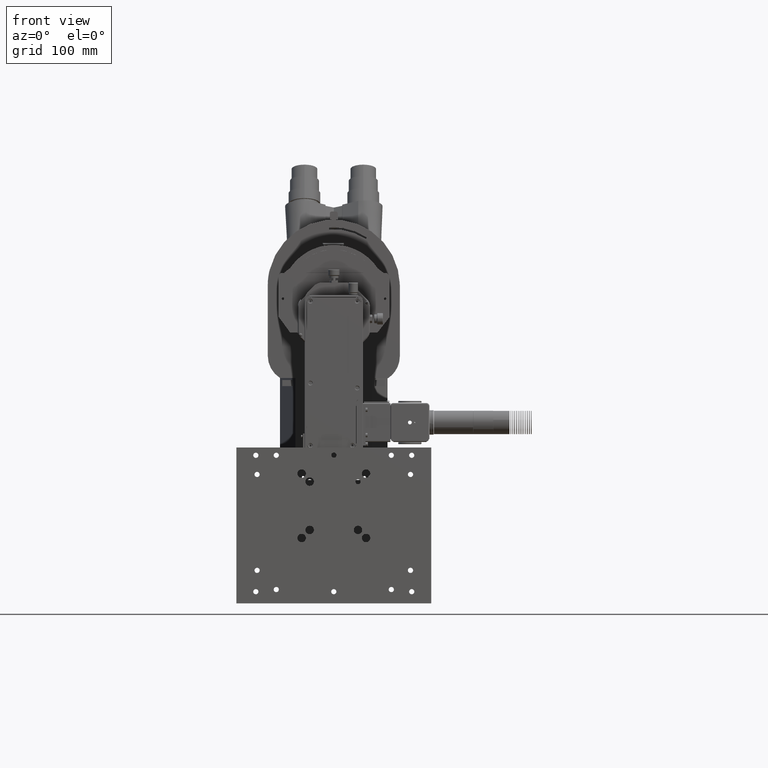
[diagram: clean part render]
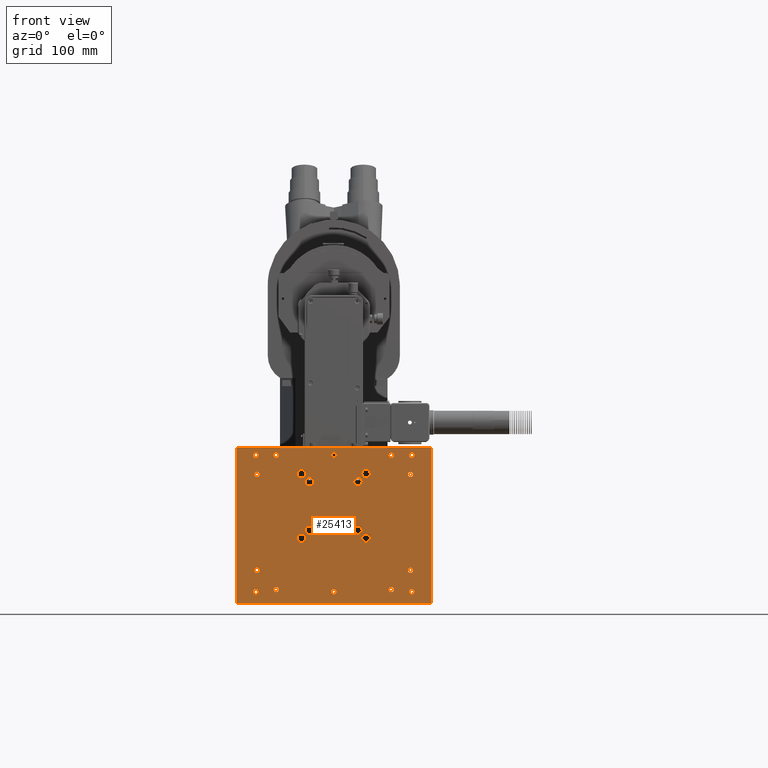
[diagram: same view with one face highlighted and labeled with its STEP entity id]
A machine part, front view. The second image highlights one B-rep face of the part: STEP entity #25413.
In plain terms, the highlighted planar face has unit normal (0, -1, 0).
Its self-contained STEP definition (entity closure, byte-faithful):
#322 = DIRECTION ( 'NONE',  ( 0.0000000000000000000, 0.0000000000000000000, 1.000000000000000000 ) ) ;
#351 = VERTEX_POINT ( 'NONE', #124702 ) ;
#393 = AXIS2_PLACEMENT_3D ( 'NONE', #75958, #5577, #87717 ) ;
#517 = DIRECTION ( 'NONE',  ( -0.0000000000000000000, -1.000000000000000000, -0.0000000000000000000 ) ) ;
#668 = FACE_BOUND ( 'NONE', #17417, .T. ) ;
#756 = ORIENTED_EDGE ( 'NONE', *, *, #141740, .T. ) ;
#826 = DIRECTION ( 'NONE',  ( -0.0000000000000000000, -1.000000000000000000, -0.0000000000000000000 ) ) ;
#1178 = DIRECTION ( 'NONE',  ( 0.0000000000000000000, 0.0000000000000000000, 1.000000000000000000 ) ) ;
#1414 = EDGE_CURVE ( 'NONE', #109411, #146704, #26668, .T. ) ;
#1657 = VERTEX_POINT ( 'NONE', #77274 ) ;
#2815 = DIRECTION ( 'NONE',  ( -0.0000000000000000000, -1.000000000000000000, -0.0000000000000000000 ) ) ;
#2987 = CARTESIAN_POINT ( 'NONE',  ( -100.5459852987327200, -399.1462781206983000, 302.1606022212441800 ) ) ;
#3270 = CARTESIAN_POINT ( 'NONE',  ( 126.4540147012673000, -399.1462781206983000, 138.6224023232441900 ) ) ;
#3274 = CARTESIAN_POINT ( 'NONE',  ( 128.0540147012672800, -399.1462781206983000, 292.0006022212442100 ) ) ;
#3458 = AXIS2_PLACEMENT_3D ( 'NONE', #14338, #96528, #26104 ) ;
#3528 = VERTEX_POINT ( 'NONE', #105061 ) ;
#3657 = EDGE_CURVE ( 'NONE', #120094, #57173, #18606, .T. ) ;
#4375 = EDGE_CURVE ( 'NONE', #151669, #13624, #56819, .T. ) ;
#4600 = CARTESIAN_POINT ( 'NONE',  ( -73.54598529873271700, -399.1462781206983000, 138.6224023232441900 ) ) ;
#4930 = DIRECTION ( 'NONE',  ( 0.0000000000000000000, 0.0000000000000000000, 1.000000000000000000 ) ) ;
#5414 = LINE ( 'NONE', #22625, #67844 ) ;
#5577 = DIRECTION ( 'NONE',  ( -0.0000000000000000000, -1.000000000000000000, -0.0000000000000000000 ) ) ;
#5737 = CARTESIAN_POINT ( 'NONE',  ( 26.45401470126729000, -399.1462781206983000, 292.0006022212442100 ) ) ;
#5921 = AXIS2_PLACEMENT_3D ( 'NONE', #79499, #9078, #91287 ) ;
#6106 = DIRECTION ( 'NONE',  ( -0.0000000000000000000, 1.000000000000000000, -0.0000000000000000000 ) ) ;
#6260 = CARTESIAN_POINT ( 'NONE',  ( 57.95001470126939600, -399.1462781206983000, 262.9566022212446800 ) ) ;
#6780 = CARTESIAN_POINT ( 'NONE',  ( -48.54598529873270300, -399.1462781206983000, 292.0006022212442100 ) ) ;
#7404 = ORIENTED_EDGE ( 'NONE', *, *, #145349, .F. ) ;
#7628 = DIRECTION ( 'NONE',  ( -0.0000000000000000000, -1.000000000000000000, -0.0000000000000000000 ) ) ;
#8201 = VERTEX_POINT ( 'NONE', #119262 ) ;
#8243 = DIRECTION ( 'NONE',  ( 0.0000000000000000000, 0.0000000000000000000, -1.000000000000000000 ) ) ;
#8752 = VECTOR ( 'NONE', #48364, 1000.000000000000000 ) ;
#8981 = AXIS2_PLACEMENT_3D ( 'NONE', #76488, #6106, #88281 ) ;
#9078 = DIRECTION ( 'NONE',  ( -0.0000000000000000000, -1.000000000000000000, -0.0000000000000000000 ) ) ;
#9120 = VERTEX_POINT ( 'NONE', #35962 ) ;
#9248 = CARTESIAN_POINT ( 'NONE',  ( 26.45401470126729000, -399.1462781206983000, 295.3788022212442000 ) ) ;
#9401 = DIRECTION ( 'NONE',  ( 0.0000000000000000000, 0.0000000000000000000, 1.000000000000000000 ) ) ;
#9575 = ORIENTED_EDGE ( 'NONE', *, *, #148997, .T. ) ;
#9847 = EDGE_CURVE ( 'NONE', #17553, #128916, #149635, .T. ) ;
#11129 = AXIS2_PLACEMENT_3D ( 'NONE', #78020, #7628, #89839 ) ;
#11387 = CARTESIAN_POINT ( 'NONE',  ( 153.4540147012672800, -399.1462781206983000, 302.1606022212441800 ) ) ;
#12430 = AXIS2_PLACEMENT_3D ( 'NONE', #108325, #37753, #120207 ) ;
#12500 = ORIENTED_EDGE ( 'NONE', *, *, #18422, .F. ) ;
#12503 = VERTEX_POINT ( 'NONE', #71260 ) ;
#13187 = ORIENTED_EDGE ( 'NONE', *, *, #126448, .F. ) ;
#13316 = CIRCLE ( 'NONE', #145901, 3.378199999999997900 ) ;
#13491 = VERTEX_POINT ( 'NONE', #101199 ) ;
#13624 = VERTEX_POINT ( 'NONE', #27217 ) ;
#13822 = AXIS2_PLACEMENT_3D ( 'NONE', #142048, #71417, #1178 ) ;
#14146 = DIRECTION ( 'NONE',  ( -0.0000000000000000000, 1.000000000000000000, -0.0000000000000000000 ) ) ;
#14200 = ORIENTED_EDGE ( 'NONE', *, *, #3657, .T. ) ;
#14315 = DIRECTION ( 'NONE',  ( -0.0000000000000000000, 1.000000000000000000, -0.0000000000000000000 ) ) ;
#14338 = CARTESIAN_POINT ( 'NONE',  ( 57.95001470126939600, -399.1462781206983000, 194.4646022212447700 ) ) ;
#14832 = VERTEX_POINT ( 'NONE', #86598 ) ;
#14958 = LINE ( 'NONE', #2987, #105164 ) ;
#15413 = CARTESIAN_POINT ( 'NONE',  ( 126.4540147012673000, -399.1462781206983000, 267.0006022212441500 ) ) ;
#16310 = VERTEX_POINT ( 'NONE', #6260 ) ;
#16438 = EDGE_CURVE ( 'NONE', #3528, #97197, #104066, .T. ) ;
#16835 = EDGE_LOOP ( 'NONE', ( #93724, #13187 ) ) ;
#17032 = FACE_BOUND ( 'NONE', #33519, .T. ) ;
#17417 = EDGE_LOOP ( 'NONE', ( #146280, #19807 ) ) ;
#17456 = DIRECTION ( 'NONE',  ( 0.0000000000000000000, 0.0000000000000000000, 1.000000000000000000 ) ) ;
#17553 = VERTEX_POINT ( 'NONE', #81390 ) ;
#17598 = CARTESIAN_POINT ( 'NONE',  ( -73.54598529873271700, -399.1462781206983000, 270.3788022212441400 ) ) ;
#17708 = CIRCLE ( 'NONE', #94916, 5.500000000000005300 ) ;
#17968 = ORIENTED_EDGE ( 'NONE', *, *, #147350, .T. ) ;
#18068 = ORIENTED_EDGE ( 'NONE', *, *, #26207, .F. ) ;
#18108 = CARTESIAN_POINT ( 'NONE',  ( 68.45291470126937800, -399.1462781206983000, 183.9617022212447900 ) ) ;
#18422 = EDGE_CURVE ( 'NONE', #14832, #13491, #5414, .T. ) ;
#18508 = DIRECTION ( 'NONE',  ( 0.0000000000000000000, 0.0000000000000000000, 1.000000000000000000 ) ) ;
#18530 = EDGE_CURVE ( 'NONE', #93617, #12503, #126917, .T. ) ;
#18606 = CIRCLE ( 'NONE', #65833, 3.378199999999997900 ) ;
#19389 = DIRECTION ( 'NONE',  ( -0.0000000000000000000, -1.000000000000000000, -0.0000000000000000000 ) ) ;
#19805 = CARTESIAN_POINT ( 'NONE',  ( 26.45401470126729000, -399.1462781206983000, 117.5788022212441700 ) ) ;
#19807 = ORIENTED_EDGE ( 'NONE', *, *, #16438, .T. ) ;
#20007 = CARTESIAN_POINT ( 'NONE',  ( -15.54488529872733000, -399.1462781206983000, 267.9595022212479900 ) ) ;
#20688 = ORIENTED_EDGE ( 'NONE', *, *, #9847, .F. ) ;
#20716 = FACE_BOUND ( 'NONE', #148176, .T. ) ;
#20774 = EDGE_CURVE ( 'NONE', #95065, #57367, #98026, .T. ) ;
#22280 = ORIENTED_EDGE ( 'NONE', *, *, #71861, .T. ) ;
#22625 = CARTESIAN_POINT ( 'NONE',  ( -100.5459852987327200, -399.1462781206983000, 98.96060222124420100 ) ) ;
#22731 = ORIENTED_EDGE ( 'NONE', *, *, #101878, .T. ) ;
#22740 = CIRCLE ( 'NONE', #58352, 5.500000000000005300 ) ;
#23021 = CARTESIAN_POINT ( 'NONE',  ( 128.0540147012672800, -399.1462781206983000, 110.8224022212442000 ) ) ;
#23814 = CIRCLE ( 'NONE', #127663, 3.378199999999997900 ) ;
#24347 = FACE_BOUND ( 'NONE', #82354, .T. ) ;
#24717 = CARTESIAN_POINT ( 'NONE',  ( 126.4540147012673000, -399.1462781206983000, 145.3788023232441700 ) ) ;
#25219 = DIRECTION ( 'NONE',  ( 0.0000000000000000000, 0.0000000000000000000, 1.000000000000000000 ) ) ;
#25413 = ADVANCED_FACE ( 'NONE', ( #31791, #35412, #668, #122081, #90671, #59371, #28100, #149749, #118338, #86927, #55682, #24347, #145997, #114639, #83248, #51981, #20716, #142276, #110953, #79604, #48274, #17032, #138591 ), #96564, .T. ) ;
#25929 = VERTEX_POINT ( 'NONE', #120782 ) ;
#26104 = DIRECTION ( 'NONE',  ( 0.0000000000000000000, 0.0000000000000000000, -1.000000000000000000 ) ) ;
#26207 = EDGE_CURVE ( 'NONE', #70835, #32268, #132544, .T. ) ;
#26303 = ORIENTED_EDGE ( 'NONE', *, *, #18530, .F. ) ;
#26337 = ORIENTED_EDGE ( 'NONE', *, *, #1414, .T. ) ;
#26668 = CIRCLE ( 'NONE', #92453, 3.378199999999997900 ) ;
#26672 = DIRECTION ( 'NONE',  ( 0.0000000000000000000, -1.000000000000000000, 0.0000000000000000000 ) ) ;
#26925 = ORIENTED_EDGE ( 'NONE', *, *, #75647, .F. ) ;
#26987 = CARTESIAN_POINT ( 'NONE',  ( -75.14598529873269700, -399.1462781206983000, 114.2006022212442000 ) ) ;
#27217 = CARTESIAN_POINT ( 'NONE',  ( -75.14598529873269700, -399.1462781206983000, 110.8224022212442000 ) ) ;
#27232 = DIRECTION ( 'NONE',  ( 0.0000000000000000000, 0.0000000000000000000, 1.000000000000000000 ) ) ;
#28100 = FACE_BOUND ( 'NONE', #127516, .T. ) ;
#29495 = CARTESIAN_POINT ( 'NONE',  ( 126.4540147012673000, -399.1462781206983000, 270.3788022212441400 ) ) ;
#29753 = VERTEX_POINT ( 'NONE', #126216 ) ;
#29927 = DIRECTION ( 'NONE',  ( 0.0000000000000000000, 0.0000000000000000000, -1.000000000000000000 ) ) ;
#31632 = CIRCLE ( 'NONE', #60205, 3.378199999999997900 ) ;
#31791 = FACE_BOUND ( 'NONE', #83372, .T. ) ;
#32268 = VERTEX_POINT ( 'NONE', #119928 ) ;
#32433 = VERTEX_POINT ( 'NONE', #87872 ) ;
#32659 = CARTESIAN_POINT ( 'NONE',  ( -5.041985298728151900, -399.1462781206983000, 257.4566022212471800 ) ) ;
#32951 = AXIS2_PLACEMENT_3D ( 'NONE', #62251, #144656, #74043 ) ;
#32960 = CARTESIAN_POINT ( 'NONE',  ( 26.45401470126729000, -399.1462781206983000, 288.6224022212442200 ) ) ;
#33377 = EDGE_LOOP ( 'NONE', ( #125577, #7404 ) ) ;
#33519 = EDGE_LOOP ( 'NONE', ( #44997, #134516 ) ) ;
#34106 = CARTESIAN_POINT ( 'NONE',  ( 126.4540147012673000, -399.1462781206983000, 142.0006023232441800 ) ) ;
#34324 = CARTESIAN_POINT ( 'NONE',  ( 68.45291470126937800, -399.1462781206983000, 183.9617022212447900 ) ) ;
#34331 = ORIENTED_EDGE ( 'NONE', *, *, #40324, .T. ) ;
#34783 = DIRECTION ( 'NONE',  ( 0.0000000000000000000, 0.0000000000000000000, 1.000000000000000000 ) ) ;
#34914 = CIRCLE ( 'NONE', #36866, 3.378199999999997900 ) ;
#35412 = FACE_BOUND ( 'NONE', #79916, .T. ) ;
#35962 = CARTESIAN_POINT ( 'NONE',  ( -5.041985298728151900, -399.1462781206983000, 188.9646022212422700 ) ) ;
#36117 = CARTESIAN_POINT ( 'NONE',  ( -15.54488529872733000, -399.1462781206983000, 178.4617022212414700 ) ) ;
#36538 = CIRCLE ( 'NONE', #32951, 3.378199999999997900 ) ;
#36866 = AXIS2_PLACEMENT_3D ( 'NONE', #137734, #67146, #149650 ) ;
#36942 = VERTEX_POINT ( 'NONE', #134491 ) ;
#37714 = EDGE_CURVE ( 'NONE', #68869, #1657, #36538, .T. ) ;
#37753 = DIRECTION ( 'NONE',  ( -0.0000000000000000000, -1.000000000000000000, -0.0000000000000000000 ) ) ;
#38034 = CARTESIAN_POINT ( 'NONE',  ( -75.14598529873269700, -399.1462781206983000, 117.5788022212442000 ) ) ;
#38770 = DIRECTION ( 'NONE',  ( 0.0000000000000000000, 0.0000000000000000000, 1.000000000000000000 ) ) ;
#39422 = EDGE_CURVE ( 'NONE', #16310, #84991, #22740, .T. ) ;
#39644 = DIRECTION ( 'NONE',  ( -0.0000000000000000000, 1.000000000000000000, -0.0000000000000000000 ) ) ;
#40137 = ORIENTED_EDGE ( 'NONE', *, *, #133438, .F. ) ;
#40324 = EDGE_CURVE ( 'NONE', #351, #106833, #102152, .T. ) ;
#41427 = CIRCLE ( 'NONE', #113439, 3.378199999999997900 ) ;
#41807 = CIRCLE ( 'NONE', #127027, 3.378199999999997900 ) ;
#42486 = EDGE_CURVE ( 'NONE', #84991, #16310, #52851, .T. ) ;
#42579 = CARTESIAN_POINT ( 'NONE',  ( 26.45401470126729000, -399.1462781206983000, 114.2006022212441700 ) ) ;
#42637 = AXIS2_PLACEMENT_3D ( 'NONE', #34324, #116731, #46163 ) ;
#43033 = CIRCLE ( 'NONE', #56867, 3.378199999999997900 ) ;
#44293 = DIRECTION ( 'NONE',  ( 0.0000000000000000000, 0.0000000000000000000, -1.000000000000000000 ) ) ;
#44404 = EDGE_CURVE ( 'NONE', #45562, #36942, #41807, .T. ) ;
#44460 = DIRECTION ( 'NONE',  ( 0.0000000000000000000, 0.0000000000000000000, -1.000000000000000000 ) ) ;
#44997 = ORIENTED_EDGE ( 'NONE', *, *, #62649, .F. ) ;
#45165 = DIRECTION ( 'NONE',  ( -0.0000000000000000000, 1.000000000000000000, -0.0000000000000000000 ) ) ;
#45294 = ORIENTED_EDGE ( 'NONE', *, *, #44404, .T. ) ;
#45562 = VERTEX_POINT ( 'NONE', #147287 ) ;
#45667 = DIRECTION ( 'NONE',  ( 0.0000000000000000000, 0.0000000000000000000, 1.000000000000000000 ) ) ;
#45937 = DIRECTION ( 'NONE',  ( 0.0000000000000000000, 0.0000000000000000000, 1.000000000000000000 ) ) ;
#46120 = AXIS2_PLACEMENT_3D ( 'NONE', #32659, #115006, #44460 ) ;
#46163 = DIRECTION ( 'NONE',  ( 0.0000000000000000000, 0.0000000000000000000, -1.000000000000000000 ) ) ;
#46533 = ORIENTED_EDGE ( 'NONE', *, *, #4375, .T. ) ;
#46787 = CARTESIAN_POINT ( 'NONE',  ( -73.54598529873271700, -399.1462781206983000, 145.3788023232441700 ) ) ;
#47088 = VERTEX_POINT ( 'NONE', #3270 ) ;
#47395 = EDGE_CURVE ( 'NONE', #57367, #95065, #105958, .T. ) ;
#48274 = FACE_BOUND ( 'NONE', #50780, .T. ) ;
#48289 = DIRECTION ( 'NONE',  ( -0.0000000000000000000, 1.000000000000000000, -0.0000000000000000000 ) ) ;
#48364 = DIRECTION ( 'NONE',  ( 1.000000000000000000, 0.0000000000000000000, 0.0000000000000000000 ) ) ;
#48534 = EDGE_CURVE ( 'NONE', #32268, #70835, #123799, .T. ) ;
#48933 = ORIENTED_EDGE ( 'NONE', *, *, #51956, .T. ) ;
#49107 = VERTEX_POINT ( 'NONE', #121422 ) ;
#50780 = EDGE_LOOP ( 'NONE', ( #146854, #57571 ) ) ;
#51579 = CARTESIAN_POINT ( 'NONE',  ( 68.45291470126937800, -399.1462781206983000, 273.4595022212446300 ) ) ;
#51716 = DIRECTION ( 'NONE',  ( -0.0000000000000000000, 1.000000000000000000, -0.0000000000000000000 ) ) ;
#51956 = EDGE_CURVE ( 'NONE', #47088, #65986, #96351, .T. ) ;
#51981 = FACE_BOUND ( 'NONE', #145126, .T. ) ;
#52057 = ORIENTED_EDGE ( 'NONE', *, *, #130166, .F. ) ;
#52851 = CIRCLE ( 'NONE', #99096, 5.500000000000005300 ) ;
#53226 = DIRECTION ( 'NONE',  ( -0.0000000000000000000, -1.000000000000000000, -0.0000000000000000000 ) ) ;
#53359 = CARTESIAN_POINT ( 'NONE',  ( -75.14598529873269700, -399.1462781206983000, 288.6224022212442200 ) ) ;
#53476 = AXIS2_PLACEMENT_3D ( 'NONE', #34106, #116497, #45937 ) ;
#53818 = AXIS2_PLACEMENT_3D ( 'NONE', #3274, #97191, #144171 ) ;
#54471 = DIRECTION ( 'NONE',  ( 0.0000000000000000000, 0.0000000000000000000, 1.000000000000000000 ) ) ;
#55682 = FACE_BOUND ( 'NONE', #142528, .T. ) ;
#56114 = CARTESIAN_POINT ( 'NONE',  ( 57.95001470126939600, -399.1462781206983000, 194.4646022212447700 ) ) ;
#56424 = EDGE_LOOP ( 'NONE', ( #26337, #123849 ) ) ;
#56699 = CIRCLE ( 'NONE', #104025, 3.378199999999997900 ) ;
#56819 = CIRCLE ( 'NONE', #61623, 3.378199999999997900 ) ;
#56867 = AXIS2_PLACEMENT_3D ( 'NONE', #145856, #75285, #4930 ) ;
#57173 = VERTEX_POINT ( 'NONE', #137619 ) ;
#57367 = VERTEX_POINT ( 'NONE', #70554 ) ;
#57517 = CARTESIAN_POINT ( 'NONE',  ( -73.54598529873271700, -399.1462781206983000, 142.0006023232441800 ) ) ;
#57571 = ORIENTED_EDGE ( 'NONE', *, *, #39422, .F. ) ;
#58352 = AXIS2_PLACEMENT_3D ( 'NONE', #70134, #152697, #82005 ) ;
#58595 = EDGE_LOOP ( 'NONE', ( #22731, #72949 ) ) ;
#58791 = EDGE_LOOP ( 'NONE', ( #92944, #45294 ) ) ;
#59371 = FACE_BOUND ( 'NONE', #79541, .T. ) ;
#60205 = AXIS2_PLACEMENT_3D ( 'NONE', #133923, #63385, #145839 ) ;
#60560 = CIRCLE ( 'NONE', #86711, 3.378199999999997900 ) ;
#60610 = CIRCLE ( 'NONE', #119850, 3.378199999999997900 ) ;
#60725 = CIRCLE ( 'NONE', #13822, 3.378199999999997900 ) ;
#61238 = EDGE_CURVE ( 'NONE', #125228, #152521, #124548, .T. ) ;
#61623 = AXIS2_PLACEMENT_3D ( 'NONE', #105341, #117174, #34783 ) ;
#62251 = CARTESIAN_POINT ( 'NONE',  ( -75.14598529873269700, -399.1462781206983000, 292.0006022212442100 ) ) ;
#62649 = EDGE_CURVE ( 'NONE', #152275, #147371, #17708, .T. ) ;
#62910 = AXIS2_PLACEMENT_3D ( 'NONE', #15413, #97643, #27232 ) ;
#63385 = DIRECTION ( 'NONE',  ( -0.0000000000000000000, 1.000000000000000000, -0.0000000000000000000 ) ) ;
#63412 = EDGE_CURVE ( 'NONE', #97680, #130536, #122504, .T. ) ;
#63889 = CARTESIAN_POINT ( 'NONE',  ( 128.0540147012672800, -399.1462781206983000, 117.5788022212442000 ) ) ;
#63975 = DIRECTION ( 'NONE',  ( -0.0000000000000000000, 1.000000000000000000, -0.0000000000000000000 ) ) ;
#65418 = EDGE_LOOP ( 'NONE', ( #20688, #111443 ) ) ;
#65557 = EDGE_LOOP ( 'NONE', ( #40137, #12500, #122316, #52057 ) ) ;
#65833 = AXIS2_PLACEMENT_3D ( 'NONE', #96606, #142619, #25219 ) ;
#65931 = CIRCLE ( 'NONE', #5921, 5.500000000000005300 ) ;
#65986 = VERTEX_POINT ( 'NONE', #24717 ) ;
#67146 = DIRECTION ( 'NONE',  ( -0.0000000000000000000, 1.000000000000000000, -0.0000000000000000000 ) ) ;
#67292 = CARTESIAN_POINT ( 'NONE',  ( 101.4540147012673000, -399.1462781206983000, 292.0006022212442100 ) ) ;
#67501 = EDGE_CURVE ( 'NONE', #128916, #17553, #78534, .T. ) ;
#67844 = VECTOR ( 'NONE', #104969, 1000.000000000000000 ) ;
#68265 = CARTESIAN_POINT ( 'NONE',  ( 153.4540147012672800, -399.1462781206983000, 302.1606022212441800 ) ) ;
#68362 = CARTESIAN_POINT ( 'NONE',  ( -48.54598529873270300, -399.1462781206983000, 292.0006022212442100 ) ) ;
#68869 = VERTEX_POINT ( 'NONE', #53359 ) ;
#69087 = AXIS2_PLACEMENT_3D ( 'NONE', #20007, #90445, #8243 ) ;
#69587 = EDGE_CURVE ( 'NONE', #78233, #124623, #43033, .T. ) ;
#70134 = CARTESIAN_POINT ( 'NONE',  ( 57.95001470126939600, -399.1462781206983000, 257.4566022212446800 ) ) ;
#70142 = CARTESIAN_POINT ( 'NONE',  ( 57.95001470126939600, -399.1462781206983000, 199.9646022212448000 ) ) ;
#70553 = DIRECTION ( 'NONE',  ( -0.0000000000000000000, 1.000000000000000000, -0.0000000000000000000 ) ) ;
#70554 = CARTESIAN_POINT ( 'NONE',  ( 101.4540147012673000, -399.1462781206983000, 120.3788023232441900 ) ) ;
#70737 = CARTESIAN_POINT ( 'NONE',  ( -5.041985298728151900, -399.1462781206983000, 194.4646022212423000 ) ) ;
#70835 = VERTEX_POINT ( 'NONE', #149166 ) ;
#70865 = ORIENTED_EDGE ( 'NONE', *, *, #145935, .F. ) ;
#71043 = CARTESIAN_POINT ( 'NONE',  ( -5.041985298728151900, -399.1462781206983000, 194.4646022212423000 ) ) ;
#71260 = CARTESIAN_POINT ( 'NONE',  ( -15.54488529872733000, -399.1462781206983000, 273.4595022212479900 ) ) ;
#71417 = DIRECTION ( 'NONE',  ( -0.0000000000000000000, 1.000000000000000000, -0.0000000000000000000 ) ) ;
#71861 = EDGE_CURVE ( 'NONE', #8201, #32433, #56699, .T. ) ;
#72079 = AXIS2_PLACEMENT_3D ( 'NONE', #84730, #14315, #96496 ) ;
#72728 = CIRCLE ( 'NONE', #140083, 5.500000000000005300 ) ;
#72949 = ORIENTED_EDGE ( 'NONE', *, *, #132080, .T. ) ;
#73033 = AXIS2_PLACEMENT_3D ( 'NONE', #42579, #125100, #54471 ) ;
#73086 = CARTESIAN_POINT ( 'NONE',  ( -5.041985298728151900, -399.1462781206983000, 257.4566022212471800 ) ) ;
#73367 = CARTESIAN_POINT ( 'NONE',  ( 68.45291470126937800, -399.1462781206983000, 262.4595022212446300 ) ) ;
#74043 = DIRECTION ( 'NONE',  ( 0.0000000000000000000, 0.0000000000000000000, 1.000000000000000000 ) ) ;
#74398 = ORIENTED_EDGE ( 'NONE', *, *, #95168, .F. ) ;
#75285 = DIRECTION ( 'NONE',  ( -0.0000000000000000000, 1.000000000000000000, -0.0000000000000000000 ) ) ;
#75507 = CARTESIAN_POINT ( 'NONE',  ( 57.95001470126939600, -399.1462781206983000, 251.9566022212446500 ) ) ;
#75647 = EDGE_CURVE ( 'NONE', #12503, #93617, #143899, .T. ) ;
#75958 = CARTESIAN_POINT ( 'NONE',  ( -15.54488529872733000, -399.1462781206983000, 183.9617022212414700 ) ) ;
#76488 = CARTESIAN_POINT ( 'NONE',  ( -48.54598529873270300, -399.1462781206983000, 117.0006023232441900 ) ) ;
#77274 = CARTESIAN_POINT ( 'NONE',  ( -75.14598529873269700, -399.1462781206983000, 295.3788022212442000 ) ) ;
#78020 = CARTESIAN_POINT ( 'NONE',  ( -15.54488529872733000, -399.1462781206983000, 267.9595022212479900 ) ) ;
#78233 = VERTEX_POINT ( 'NONE', #32960 ) ;
#78534 = CIRCLE ( 'NONE', #3458, 5.500000000000005300 ) ;
#79168 = DIRECTION ( 'NONE',  ( 0.0000000000000000000, 0.0000000000000000000, 1.000000000000000000 ) ) ;
#79499 = CARTESIAN_POINT ( 'NONE',  ( 68.45291470126937800, -399.1462781206983000, 267.9595022212446300 ) ) ;
#79541 = EDGE_LOOP ( 'NONE', ( #22280, #142641 ) ) ;
#79604 = FACE_BOUND ( 'NONE', #16835, .T. ) ;
#79804 = DIRECTION ( 'NONE',  ( -0.0000000000000000000, 1.000000000000000000, -0.0000000000000000000 ) ) ;
#79916 = EDGE_LOOP ( 'NONE', ( #9575, #95224 ) ) ;
#80128 = EDGE_CURVE ( 'NONE', #146704, #109411, #23814, .T. ) ;
#80226 = DIRECTION ( 'NONE',  ( 0.0000000000000000000, 0.0000000000000000000, 1.000000000000000000 ) ) ;
#81390 = CARTESIAN_POINT ( 'NONE',  ( 57.95001470126939600, -399.1462781206983000, 188.9646022212447700 ) ) ;
#82005 = DIRECTION ( 'NONE',  ( 0.0000000000000000000, 0.0000000000000000000, -1.000000000000000000 ) ) ;
#82354 = EDGE_LOOP ( 'NONE', ( #17968, #48933 ) ) ;
#82621 = DIRECTION ( 'NONE',  ( 0.0000000000000000000, 0.0000000000000000000, -1.000000000000000000 ) ) ;
#82922 = DIRECTION ( 'NONE',  ( 0.0000000000000000000, 0.0000000000000000000, -1.000000000000000000 ) ) ;
#83248 = FACE_BOUND ( 'NONE', #109254, .T. ) ;
#83372 = EDGE_LOOP ( 'NONE', ( #46533, #756 ) ) ;
#84216 = VERTEX_POINT ( 'NONE', #36117 ) ;
#84555 = CARTESIAN_POINT ( 'NONE',  ( -73.54598529873271700, -399.1462781206983000, 142.0006023232441800 ) ) ;
#84730 = CARTESIAN_POINT ( 'NONE',  ( 128.0540147012672800, -399.1462781206983000, 292.0006022212442100 ) ) ;
#84935 = DIRECTION ( 'NONE',  ( 0.0000000000000000000, 0.0000000000000000000, -1.000000000000000000 ) ) ;
#84991 = VERTEX_POINT ( 'NONE', #75507 ) ;
#85297 = CIRCLE ( 'NONE', #62910, 3.378199999999997900 ) ;
#86461 = ORIENTED_EDGE ( 'NONE', *, *, #47395, .T. ) ;
#86598 = CARTESIAN_POINT ( 'NONE',  ( 153.4540147012672800, -399.1462781206983000, 98.96060222124420100 ) ) ;
#86711 = AXIS2_PLACEMENT_3D ( 'NONE', #118856, #48289, #130671 ) ;
#86927 = FACE_BOUND ( 'NONE', #124010, .T. ) ;
#87717 = DIRECTION ( 'NONE',  ( 0.0000000000000000000, 0.0000000000000000000, -1.000000000000000000 ) ) ;
#87872 = CARTESIAN_POINT ( 'NONE',  ( -48.54598529873270300, -399.1462781206983000, 288.6224022212442200 ) ) ;
#87884 = DIRECTION ( 'NONE',  ( -0.0000000000000000000, 1.000000000000000000, -0.0000000000000000000 ) ) ;
#88281 = DIRECTION ( 'NONE',  ( 0.0000000000000000000, 0.0000000000000000000, 1.000000000000000000 ) ) ;
#88955 = DIRECTION ( 'NONE',  ( -0.0000000000000000000, 1.000000000000000000, -0.0000000000000000000 ) ) ;
#89839 = DIRECTION ( 'NONE',  ( 0.0000000000000000000, 0.0000000000000000000, -1.000000000000000000 ) ) ;
#89856 = CARTESIAN_POINT ( 'NONE',  ( 68.45291470126937800, -399.1462781206983000, 267.9595022212446300 ) ) ;
#90087 = ORIENTED_EDGE ( 'NONE', *, *, #119424, .T. ) ;
#90278 = CARTESIAN_POINT ( 'NONE',  ( -48.54598529873270300, -399.1462781206983000, 113.6224023232441900 ) ) ;
#90445 = DIRECTION ( 'NONE',  ( -0.0000000000000000000, -1.000000000000000000, -0.0000000000000000000 ) ) ;
#90671 = FACE_BOUND ( 'NONE', #123440, .T. ) ;
#91287 = DIRECTION ( 'NONE',  ( 0.0000000000000000000, 0.0000000000000000000, -1.000000000000000000 ) ) ;
#91532 = ORIENTED_EDGE ( 'NONE', *, *, #48534, .F. ) ;
#91873 = EDGE_CURVE ( 'NONE', #49107, #151907, #92533, .T. ) ;
#92088 = VERTEX_POINT ( 'NONE', #103985 ) ;
#92421 = CARTESIAN_POINT ( 'NONE',  ( 101.4540147012673000, -399.1462781206983000, 113.6224023232441900 ) ) ;
#92453 = AXIS2_PLACEMENT_3D ( 'NONE', #57517, #128102, #45667 ) ;
#92533 = CIRCLE ( 'NONE', #97520, 5.500000000000005300 ) ;
#92826 = ORIENTED_EDGE ( 'NONE', *, *, #144692, .T. ) ;
#92944 = ORIENTED_EDGE ( 'NONE', *, *, #114784, .T. ) ;
#93409 = CIRCLE ( 'NONE', #119014, 3.378199999999997900 ) ;
#93617 = VERTEX_POINT ( 'NONE', #106142 ) ;
#93724 = ORIENTED_EDGE ( 'NONE', *, *, #91873, .F. ) ;
#94916 = AXIS2_PLACEMENT_3D ( 'NONE', #89856, #19389, #101688 ) ;
#95065 = VERTEX_POINT ( 'NONE', #92421 ) ;
#95168 = EDGE_CURVE ( 'NONE', #29753, #9120, #140975, .T. ) ;
#95224 = ORIENTED_EDGE ( 'NONE', *, *, #37714, .T. ) ;
#96338 = DIRECTION ( 'NONE',  ( 0.0000000000000000000, 0.0000000000000000000, 1.000000000000000000 ) ) ;
#96351 = CIRCLE ( 'NONE', #53476, 3.378199999999997900 ) ;
#96496 = DIRECTION ( 'NONE',  ( 0.0000000000000000000, 0.0000000000000000000, 1.000000000000000000 ) ) ;
#96528 = DIRECTION ( 'NONE',  ( -0.0000000000000000000, -1.000000000000000000, -0.0000000000000000000 ) ) ;
#96564 = PLANE ( 'NONE',  #148620 ) ;
#96606 = CARTESIAN_POINT ( 'NONE',  ( -73.54598529873271700, -399.1462781206983000, 267.0006022212441500 ) ) ;
#97041 = EDGE_CURVE ( 'NONE', #84216, #92088, #123208, .T. ) ;
#97088 = CARTESIAN_POINT ( 'NONE',  ( -100.5459852987327200, -399.1462781206983000, 302.1606022212441800 ) ) ;
#97191 = DIRECTION ( 'NONE',  ( -0.0000000000000000000, 1.000000000000000000, -0.0000000000000000000 ) ) ;
#97197 = VERTEX_POINT ( 'NONE', #101625 ) ;
#97246 = EDGE_CURVE ( 'NONE', #147371, #152275, #65931, .T. ) ;
#97520 = AXIS2_PLACEMENT_3D ( 'NONE', #18108, #100363, #29927 ) ;
#97643 = DIRECTION ( 'NONE',  ( -0.0000000000000000000, 1.000000000000000000, -0.0000000000000000000 ) ) ;
#97680 = VERTEX_POINT ( 'NONE', #63889 ) ;
#98026 = CIRCLE ( 'NONE', #141567, 3.378199999999997900 ) ;
#99096 = AXIS2_PLACEMENT_3D ( 'NONE', #123827, #53226, #135567 ) ;
#100003 = AXIS2_PLACEMENT_3D ( 'NONE', #73086, #2815, #84935 ) ;
#100363 = DIRECTION ( 'NONE',  ( -0.0000000000000000000, -1.000000000000000000, -0.0000000000000000000 ) ) ;
#101199 = CARTESIAN_POINT ( 'NONE',  ( -100.5459852987327200, -399.1462781206983000, 98.96060222124420100 ) ) ;
#101625 = CARTESIAN_POINT ( 'NONE',  ( 128.0540147012672800, -399.1462781206983000, 295.3788022212442000 ) ) ;
#101688 = DIRECTION ( 'NONE',  ( 0.0000000000000000000, 0.0000000000000000000, -1.000000000000000000 ) ) ;
#101878 = EDGE_CURVE ( 'NONE', #115628, #25929, #34914, .T. ) ;
#101942 = ORIENTED_EDGE ( 'NONE', *, *, #63412, .T. ) ;
#101948 = AXIS2_PLACEMENT_3D ( 'NONE', #134547, #63975, #146448 ) ;
#102152 = CIRCLE ( 'NONE', #73033, 3.378199999999997900 ) ;
#103985 = CARTESIAN_POINT ( 'NONE',  ( -15.54488529872733000, -399.1462781206983000, 189.4617022212414700 ) ) ;
#104025 = AXIS2_PLACEMENT_3D ( 'NONE', #6780, #88955, #18508 ) ;
#104066 = CIRCLE ( 'NONE', #53818, 3.378199999999997900 ) ;
#104192 = ORIENTED_EDGE ( 'NONE', *, *, #61238, .T. ) ;
#104935 = VECTOR ( 'NONE', #115167, 1000.000000000000000 ) ;
#104969 = DIRECTION ( 'NONE',  ( -1.000000000000000000, -0.0000000000000000000, -0.0000000000000000000 ) ) ;
#105061 = CARTESIAN_POINT ( 'NONE',  ( 128.0540147012672800, -399.1462781206983000, 288.6224022212442200 ) ) ;
#105164 = VECTOR ( 'NONE', #132978, 1000.000000000000000 ) ;
#105341 = CARTESIAN_POINT ( 'NONE',  ( -75.14598529873269700, -399.1462781206983000, 114.2006022212442000 ) ) ;
#105958 = CIRCLE ( 'NONE', #150988, 3.378199999999997900 ) ;
#106142 = CARTESIAN_POINT ( 'NONE',  ( -15.54488529872733000, -399.1462781206983000, 262.4595022212479900 ) ) ;
#106195 = EDGE_LOOP ( 'NONE', ( #90087, #104192 ) ) ;
#106274 = LINE ( 'NONE', #142620, #8752 ) ;
#106833 = VERTEX_POINT ( 'NONE', #19805 ) ;
#107316 = AXIS2_PLACEMENT_3D ( 'NONE', #68362, #150895, #80226 ) ;
#107747 = EDGE_CURVE ( 'NONE', #57173, #120094, #60560, .T. ) ;
#108325 = CARTESIAN_POINT ( 'NONE',  ( -15.54488529872733000, -399.1462781206983000, 183.9617022212414700 ) ) ;
#108605 = LINE ( 'NONE', #68265, #104935 ) ;
#109018 = DIRECTION ( 'NONE',  ( 0.0000000000000000000, -0.0000000000000000000, -1.000000000000000000 ) ) ;
#109155 = CIRCLE ( 'NONE', #42637, 5.500000000000005300 ) ;
#109254 = EDGE_LOOP ( 'NONE', ( #26303, #26925 ) ) ;
#109330 = DIRECTION ( 'NONE',  ( -0.0000000000000000000, 1.000000000000000000, -0.0000000000000000000 ) ) ;
#109400 = VERTEX_POINT ( 'NONE', #11387 ) ;
#109411 = VERTEX_POINT ( 'NONE', #46787 ) ;
#110228 = CARTESIAN_POINT ( 'NONE',  ( 128.0540147012672800, -399.1462781206983000, 114.2006022212442000 ) ) ;
#110379 = CIRCLE ( 'NONE', #12430, 5.500000000000005300 ) ;
#110953 = FACE_BOUND ( 'NONE', #65418, .T. ) ;
#111354 = AXIS2_PLACEMENT_3D ( 'NONE', #70737, #517, #82621 ) ;
#111443 = ORIENTED_EDGE ( 'NONE', *, *, #67501, .F. ) ;
#112006 = EDGE_CURVE ( 'NONE', #109400, #14832, #108605, .T. ) ;
#112062 = CARTESIAN_POINT ( 'NONE',  ( -48.54598529873270300, -399.1462781206983000, 120.3788023232441900 ) ) ;
#113303 = CIRCLE ( 'NONE', #101948, 3.378199999999997900 ) ;
#113439 = AXIS2_PLACEMENT_3D ( 'NONE', #141181, #70553, #322 ) ;
#113782 = ORIENTED_EDGE ( 'NONE', *, *, #145895, .T. ) ;
#114639 = FACE_BOUND ( 'NONE', #58791, .T. ) ;
#114759 = AXIS2_PLACEMENT_3D ( 'NONE', #122291, #51716, #134064 ) ;
#114784 = EDGE_CURVE ( 'NONE', #36942, #45562, #13316, .T. ) ;
#115006 = DIRECTION ( 'NONE',  ( -0.0000000000000000000, -1.000000000000000000, -0.0000000000000000000 ) ) ;
#115167 = DIRECTION ( 'NONE',  ( 0.0000000000000000000, 0.0000000000000000000, -1.000000000000000000 ) ) ;
#115502 = VERTEX_POINT ( 'NONE', #120156 ) ;
#115628 = VERTEX_POINT ( 'NONE', #29495 ) ;
#115733 = CARTESIAN_POINT ( 'NONE',  ( 101.4540147012673000, -399.1462781206983000, 117.0006023232441900 ) ) ;
#116497 = DIRECTION ( 'NONE',  ( -0.0000000000000000000, 1.000000000000000000, -0.0000000000000000000 ) ) ;
#116731 = DIRECTION ( 'NONE',  ( -0.0000000000000000000, -1.000000000000000000, -0.0000000000000000000 ) ) ;
#116801 = ORIENTED_EDGE ( 'NONE', *, *, #69587, .T. ) ;
#117174 = DIRECTION ( 'NONE',  ( -0.0000000000000000000, 1.000000000000000000, -0.0000000000000000000 ) ) ;
#118338 = FACE_BOUND ( 'NONE', #106195, .T. ) ;
#118599 = CIRCLE ( 'NONE', #107316, 3.378199999999997900 ) ;
#118856 = CARTESIAN_POINT ( 'NONE',  ( -73.54598529873271700, -399.1462781206983000, 267.0006022212441500 ) ) ;
#119014 = AXIS2_PLACEMENT_3D ( 'NONE', #26987, #109330, #38770 ) ;
#119262 = CARTESIAN_POINT ( 'NONE',  ( -48.54598529873270300, -399.1462781206983000, 295.3788022212442000 ) ) ;
#119424 = EDGE_CURVE ( 'NONE', #152521, #125228, #113303, .T. ) ;
#119850 = AXIS2_PLACEMENT_3D ( 'NONE', #5737, #87884, #17456 ) ;
#119928 = CARTESIAN_POINT ( 'NONE',  ( -5.041985298728151000, -399.1462781206983000, 262.9566022212471800 ) ) ;
#120094 = VERTEX_POINT ( 'NONE', #17598 ) ;
#120156 = CARTESIAN_POINT ( 'NONE',  ( -100.5459852987327200, -399.1462781206983000, 302.1606022212441800 ) ) ;
#120207 = DIRECTION ( 'NONE',  ( 0.0000000000000000000, 0.0000000000000000000, -1.000000000000000000 ) ) ;
#120782 = CARTESIAN_POINT ( 'NONE',  ( 126.4540147012673000, -399.1462781206983000, 263.6224022212441600 ) ) ;
#121422 = CARTESIAN_POINT ( 'NONE',  ( 68.45291470126937800, -399.1462781206983000, 178.4617022212447900 ) ) ;
#122081 = FACE_BOUND ( 'NONE', #148330, .T. ) ;
#122125 = DIRECTION ( 'NONE',  ( 0.0000000000000000000, 0.0000000000000000000, 1.000000000000000000 ) ) ;
#122291 = CARTESIAN_POINT ( 'NONE',  ( -75.14598529873269700, -399.1462781206983000, 292.0006022212442100 ) ) ;
#122316 = ORIENTED_EDGE ( 'NONE', *, *, #112006, .F. ) ;
#122504 = CIRCLE ( 'NONE', #142177, 3.378199999999997900 ) ;
#123208 = CIRCLE ( 'NONE', #393, 5.500000000000005300 ) ;
#123440 = EDGE_LOOP ( 'NONE', ( #147728, #116801 ) ) ;
#123630 = CARTESIAN_POINT ( 'NONE',  ( 101.4540147012673000, -399.1462781206983000, 117.0006023232441900 ) ) ;
#123799 = CIRCLE ( 'NONE', #100003, 5.500000000000005300 ) ;
#123827 = CARTESIAN_POINT ( 'NONE',  ( 57.95001470126939600, -399.1462781206983000, 257.4566022212446800 ) ) ;
#123849 = ORIENTED_EDGE ( 'NONE', *, *, #80128, .T. ) ;
#124010 = EDGE_LOOP ( 'NONE', ( #92826, #34331 ) ) ;
#124346 = EDGE_CURVE ( 'NONE', #124623, #78233, #60610, .T. ) ;
#124548 = CIRCLE ( 'NONE', #8981, 3.378199999999997900 ) ;
#124623 = VERTEX_POINT ( 'NONE', #9248 ) ;
#124702 = CARTESIAN_POINT ( 'NONE',  ( 26.45401470126729000, -399.1462781206983000, 110.8224022212441800 ) ) ;
#125100 = DIRECTION ( 'NONE',  ( -0.0000000000000000000, 1.000000000000000000, -0.0000000000000000000 ) ) ;
#125228 = VERTEX_POINT ( 'NONE', #90278 ) ;
#125450 = ORIENTED_EDGE ( 'NONE', *, *, #107747, .T. ) ;
#125577 = ORIENTED_EDGE ( 'NONE', *, *, #97041, .F. ) ;
#126216 = CARTESIAN_POINT ( 'NONE',  ( -5.041985298728151000, -399.1462781206983000, 199.9646022212423000 ) ) ;
#126448 = EDGE_CURVE ( 'NONE', #151907, #49107, #109155, .T. ) ;
#126845 = CIRCLE ( 'NONE', #114759, 3.378199999999997900 ) ;
#126917 = CIRCLE ( 'NONE', #69087, 5.500000000000005300 ) ;
#127027 = AXIS2_PLACEMENT_3D ( 'NONE', #67292, #149801, #79168 ) ;
#127516 = EDGE_LOOP ( 'NONE', ( #14200, #125450 ) ) ;
#127602 = DIRECTION ( 'NONE',  ( 0.0000000000000000000, 0.0000000000000000000, 1.000000000000000000 ) ) ;
#127663 = AXIS2_PLACEMENT_3D ( 'NONE', #84555, #14146, #96338 ) ;
#128102 = DIRECTION ( 'NONE',  ( -0.0000000000000000000, 1.000000000000000000, -0.0000000000000000000 ) ) ;
#128916 = VERTEX_POINT ( 'NONE', #70142 ) ;
#130166 = EDGE_CURVE ( 'NONE', #115502, #109400, #106274, .T. ) ;
#130536 = VERTEX_POINT ( 'NONE', #23021 ) ;
#130671 = DIRECTION ( 'NONE',  ( 0.0000000000000000000, 0.0000000000000000000, 1.000000000000000000 ) ) ;
#132080 = EDGE_CURVE ( 'NONE', #25929, #115628, #85297, .T. ) ;
#132544 = CIRCLE ( 'NONE', #46120, 5.500000000000005300 ) ;
#132978 = DIRECTION ( 'NONE',  ( -0.0000000000000000000, -0.0000000000000000000, 1.000000000000000000 ) ) ;
#133007 = EDGE_CURVE ( 'NONE', #97197, #3528, #151363, .T. ) ;
#133438 = EDGE_CURVE ( 'NONE', #13491, #115502, #14958, .T. ) ;
#133923 = CARTESIAN_POINT ( 'NONE',  ( 126.4540147012673000, -399.1462781206983000, 142.0006023232441800 ) ) ;
#134064 = DIRECTION ( 'NONE',  ( 0.0000000000000000000, 0.0000000000000000000, 1.000000000000000000 ) ) ;
#134491 = CARTESIAN_POINT ( 'NONE',  ( 101.4540147012673000, -399.1462781206983000, 295.3788022212442000 ) ) ;
#134516 = ORIENTED_EDGE ( 'NONE', *, *, #97246, .F. ) ;
#134547 = CARTESIAN_POINT ( 'NONE',  ( -48.54598529873270300, -399.1462781206983000, 117.0006023232441900 ) ) ;
#135354 = DIRECTION ( 'NONE',  ( -0.0000000000000000000, 1.000000000000000000, -0.0000000000000000000 ) ) ;
#135567 = DIRECTION ( 'NONE',  ( 0.0000000000000000000, 0.0000000000000000000, -1.000000000000000000 ) ) ;
#136374 = CARTESIAN_POINT ( 'NONE',  ( 68.45291470126937800, -399.1462781206983000, 189.4617022212448200 ) ) ;
#136514 = AXIS2_PLACEMENT_3D ( 'NONE', #56114, #138539, #44293 ) ;
#137619 = CARTESIAN_POINT ( 'NONE',  ( -73.54598529873271700, -399.1462781206983000, 263.6224022212441600 ) ) ;
#137734 = CARTESIAN_POINT ( 'NONE',  ( 126.4540147012673000, -399.1462781206983000, 267.0006022212441500 ) ) ;
#138539 = DIRECTION ( 'NONE',  ( -0.0000000000000000000, -1.000000000000000000, -0.0000000000000000000 ) ) ;
#138591 = FACE_OUTER_BOUND ( 'NONE', #65557, .T. ) ;
#140083 = AXIS2_PLACEMENT_3D ( 'NONE', #71043, #826, #82922 ) ;
#140975 = CIRCLE ( 'NONE', #111354, 5.500000000000005300 ) ;
#141181 = CARTESIAN_POINT ( 'NONE',  ( 128.0540147012672800, -399.1462781206983000, 114.2006022212442000 ) ) ;
#141567 = AXIS2_PLACEMENT_3D ( 'NONE', #123630, #135354, #147292 ) ;
#141740 = EDGE_CURVE ( 'NONE', #13624, #151669, #93409, .T. ) ;
#142048 = CARTESIAN_POINT ( 'NONE',  ( 26.45401470126729000, -399.1462781206983000, 114.2006022212441700 ) ) ;
#142177 = AXIS2_PLACEMENT_3D ( 'NONE', #110228, #39644, #122125 ) ;
#142276 = FACE_BOUND ( 'NONE', #33377, .T. ) ;
#142528 = EDGE_LOOP ( 'NONE', ( #86461, #152706 ) ) ;
#142619 = DIRECTION ( 'NONE',  ( -0.0000000000000000000, 1.000000000000000000, -0.0000000000000000000 ) ) ;
#142620 = CARTESIAN_POINT ( 'NONE',  ( -100.5459852987327200, -399.1462781206983000, 302.1606022212441800 ) ) ;
#142641 = ORIENTED_EDGE ( 'NONE', *, *, #146420, .T. ) ;
#143899 = CIRCLE ( 'NONE', #11129, 5.500000000000005300 ) ;
#144171 = DIRECTION ( 'NONE',  ( 0.0000000000000000000, 0.0000000000000000000, 1.000000000000000000 ) ) ;
#144656 = DIRECTION ( 'NONE',  ( -0.0000000000000000000, 1.000000000000000000, -0.0000000000000000000 ) ) ;
#144692 = EDGE_CURVE ( 'NONE', #106833, #351, #60725, .T. ) ;
#145126 = EDGE_LOOP ( 'NONE', ( #18068, #91532 ) ) ;
#145349 = EDGE_CURVE ( 'NONE', #92088, #84216, #110379, .T. ) ;
#145839 = DIRECTION ( 'NONE',  ( 0.0000000000000000000, 0.0000000000000000000, 1.000000000000000000 ) ) ;
#145856 = CARTESIAN_POINT ( 'NONE',  ( 26.45401470126729000, -399.1462781206983000, 292.0006022212442100 ) ) ;
#145895 = EDGE_CURVE ( 'NONE', #130536, #97680, #41427, .T. ) ;
#145901 = AXIS2_PLACEMENT_3D ( 'NONE', #150453, #79804, #9401 ) ;
#145935 = EDGE_CURVE ( 'NONE', #9120, #29753, #72728, .T. ) ;
#145997 = FACE_BOUND ( 'NONE', #58595, .T. ) ;
#146280 = ORIENTED_EDGE ( 'NONE', *, *, #133007, .T. ) ;
#146420 = EDGE_CURVE ( 'NONE', #32433, #8201, #118599, .T. ) ;
#146448 = DIRECTION ( 'NONE',  ( 0.0000000000000000000, 0.0000000000000000000, 1.000000000000000000 ) ) ;
#146704 = VERTEX_POINT ( 'NONE', #4600 ) ;
#146854 = ORIENTED_EDGE ( 'NONE', *, *, #42486, .F. ) ;
#147287 = CARTESIAN_POINT ( 'NONE',  ( 101.4540147012673000, -399.1462781206983000, 288.6224022212442200 ) ) ;
#147292 = DIRECTION ( 'NONE',  ( 0.0000000000000000000, 0.0000000000000000000, 1.000000000000000000 ) ) ;
#147350 = EDGE_CURVE ( 'NONE', #65986, #47088, #31632, .T. ) ;
#147371 = VERTEX_POINT ( 'NONE', #51579 ) ;
#147728 = ORIENTED_EDGE ( 'NONE', *, *, #124346, .T. ) ;
#148176 = EDGE_LOOP ( 'NONE', ( #70865, #74398 ) ) ;
#148330 = EDGE_LOOP ( 'NONE', ( #101942, #113782 ) ) ;
#148620 = AXIS2_PLACEMENT_3D ( 'NONE', #97088, #26672, #109018 ) ;
#148997 = EDGE_CURVE ( 'NONE', #1657, #68869, #126845, .T. ) ;
#149166 = CARTESIAN_POINT ( 'NONE',  ( -5.041985298728151900, -399.1462781206983000, 251.9566022212471500 ) ) ;
#149635 = CIRCLE ( 'NONE', #136514, 5.500000000000005300 ) ;
#149650 = DIRECTION ( 'NONE',  ( 0.0000000000000000000, 0.0000000000000000000, 1.000000000000000000 ) ) ;
#149749 = FACE_BOUND ( 'NONE', #56424, .T. ) ;
#149801 = DIRECTION ( 'NONE',  ( -0.0000000000000000000, 1.000000000000000000, -0.0000000000000000000 ) ) ;
#150453 = CARTESIAN_POINT ( 'NONE',  ( 101.4540147012673000, -399.1462781206983000, 292.0006022212442100 ) ) ;
#150895 = DIRECTION ( 'NONE',  ( -0.0000000000000000000, 1.000000000000000000, -0.0000000000000000000 ) ) ;
#150988 = AXIS2_PLACEMENT_3D ( 'NONE', #115733, #45165, #127602 ) ;
#151363 = CIRCLE ( 'NONE', #72079, 3.378199999999997900 ) ;
#151669 = VERTEX_POINT ( 'NONE', #38034 ) ;
#151907 = VERTEX_POINT ( 'NONE', #136374 ) ;
#152275 = VERTEX_POINT ( 'NONE', #73367 ) ;
#152521 = VERTEX_POINT ( 'NONE', #112062 ) ;
#152697 = DIRECTION ( 'NONE',  ( -0.0000000000000000000, -1.000000000000000000, -0.0000000000000000000 ) ) ;
#152706 = ORIENTED_EDGE ( 'NONE', *, *, #20774, .T. ) ;